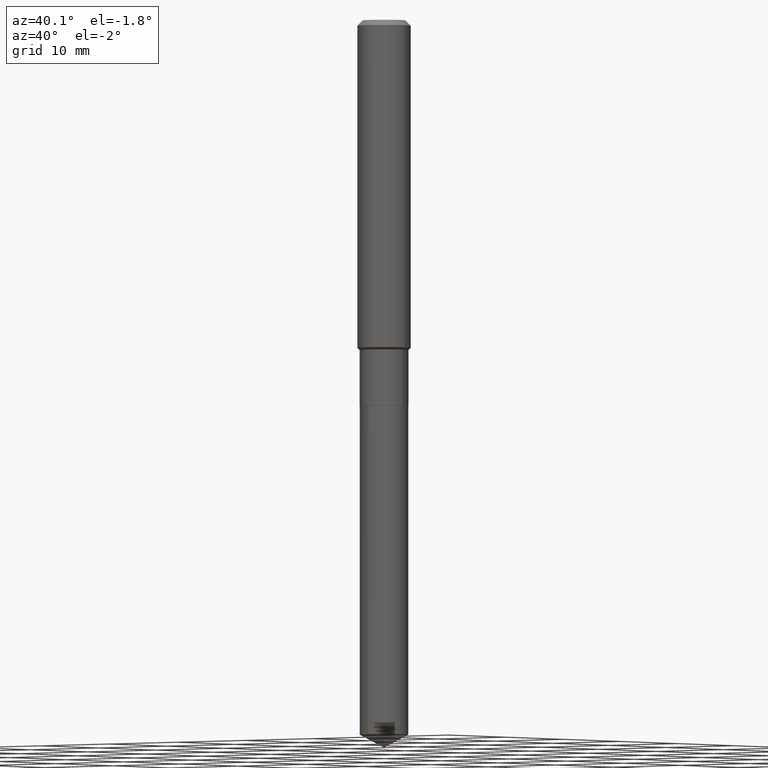
[diagram: clean part render]
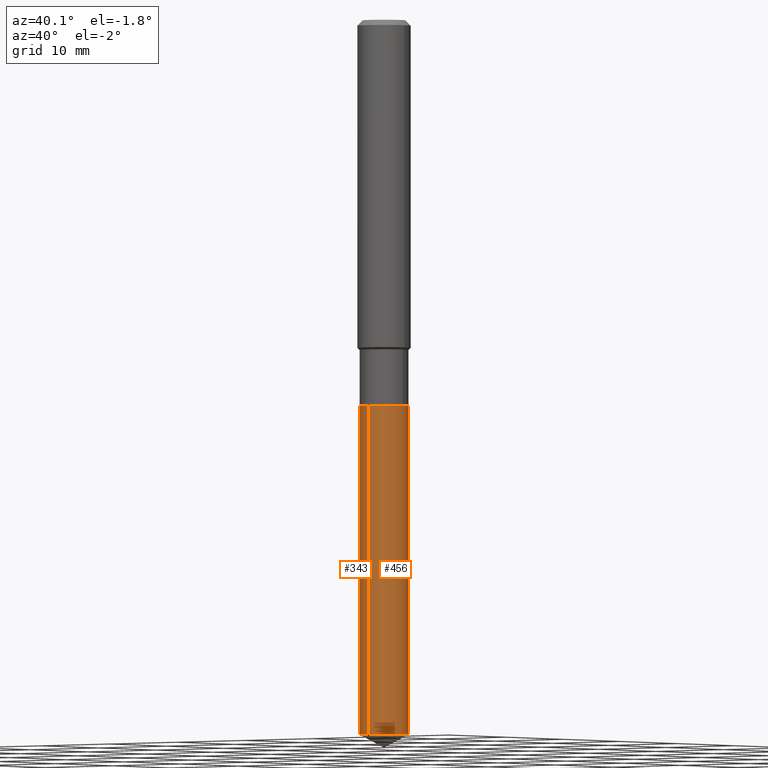
[diagram: same view with one multi-face feature highlighted, each face labeled with its STEP entity id]
A machine part, auxiliary view. The highlighted faces form ONE feature: a constant-radius fillet chain: 2 tangent blend faces with common blend radius 2.7495 mm. The faces share edges in the B-rep.
Their STEP definitions:
[1] entity #343 (Cylinder):
#5 = CARTESIAN_POINT ( 'NONE',  ( 7.691625114603860483E-16, 0.1082499999999940177, -1.712500000000000355 ) ) ;
#36 = DIRECTION ( 'NONE',  ( -2.445437012380576740E-29, 3.491526869380865605E-15, 1.000000000000000000 ) ) ;
#62 = EDGE_CURVE ( 'NONE', #84, #394, #329, .T. ) ;
#66 = CARTESIAN_POINT ( 'NONE',  ( 7.691625114603859497E-16, 0.1082499999999889523, -3.170742454022645429 ) ) ;
#70 = DIRECTION ( 'NONE',  ( -2.445437012380576740E-29, 3.491526869380865605E-15, 1.000000000000000000 ) ) ;
#84 = VERTEX_POINT ( 'NONE', #286 ) ;
#86 = EDGE_LOOP ( 'NONE', ( #402, #198, #169, #132 ) ) ;
#87 = EDGE_CURVE ( 'NONE', #138, #223, #153, .T. ) ;
#91 = CARTESIAN_POINT ( 'NONE',  ( 4.187865330592046870E-29, -5.979161792768887170E-15, -1.712500000000000133 ) ) ;
#105 = EDGE_CURVE ( 'NONE', #223, #394, #426, .T. ) ;
#119 = FACE_OUTER_BOUND ( 'NONE', #86, .T. ) ;
#132 = ORIENTED_EDGE ( 'NONE', *, *, #105, .F. ) ;
#138 = VERTEX_POINT ( 'NONE', #66 ) ;
#143 = CARTESIAN_POINT ( 'NONE',  ( -7.559057098594963527E-16, -0.1082500000000059803, -1.712499999999999911 ) ) ;
#146 = CARTESIAN_POINT ( 'NONE',  ( 7.753905400683704918E-29, -1.107065450306084433E-14, -3.170742454022644985 ) ) ;
#153 = LINE ( 'NONE', #331, #370 ) ;
#165 = EDGE_CURVE ( 'NONE', #138, #84, #353, .T. ) ;
#169 = ORIENTED_EDGE ( 'NONE', *, *, #62, .T. ) ;
#190 = DIRECTION ( 'NONE',  ( -2.445437012380576740E-29, 3.491526869380865999E-15, 1.000000000000000000 ) ) ;
#198 = ORIENTED_EDGE ( 'NONE', *, *, #165, .T. ) ;
#218 = AXIS2_PLACEMENT_3D ( 'NONE', #291, #455, #248 ) ;
#220 = AXIS2_PLACEMENT_3D ( 'NONE', #91, #226, #321 ) ;
#223 = VERTEX_POINT ( 'NONE', #5 ) ;
#226 = DIRECTION ( 'NONE',  ( -2.445437012380576740E-29, 3.491526869380865999E-15, 1.000000000000000000 ) ) ;
#234 = CYLINDRICAL_SURFACE ( 'NONE', #220, 0.1082499999999999990 ) ;
#248 = DIRECTION ( 'NONE',  ( -6.982962677686265922E-15, -1.000000000000000000, 2.523647107311097814E-15 ) ) ;
#286 = CARTESIAN_POINT ( 'NONE',  ( -7.559057098594608540E-16, -0.1082500000000110874, -3.170742454022644541 ) ) ;
#291 = CARTESIAN_POINT ( 'NONE',  ( 4.187865330592046870E-29, -5.979161792768887170E-15, -1.712500000000000133 ) ) ;
#300 = DIRECTION ( 'NONE',  ( -6.982962677686265922E-15, -1.000000000000000000, 5.047294214622195629E-15 ) ) ;
#321 = DIRECTION ( 'NONE',  ( -6.982962677686265922E-15, -1.000000000000000000, 2.523647107311097814E-15 ) ) ;
#329 = LINE ( 'NONE', #143, #339 ) ;
#331 = CARTESIAN_POINT ( 'NONE',  ( 7.691625114603501551E-16, 0.1082499999999940177, -1.712500000000000355 ) ) ;
#339 = VECTOR ( 'NONE', #36, 39.37007874015748143 ) ;
#343 = ADVANCED_FACE ( 'NONE', ( #119 ), #234, .T. ) ;
#353 = CIRCLE ( 'NONE', #457, 0.1082499999999999990 ) ;
#357 = CARTESIAN_POINT ( 'NONE',  ( -7.559057098594963527E-16, -0.1082500000000059803, -1.712499999999999911 ) ) ;
#370 = VECTOR ( 'NONE', #70, 39.37007874015748143 ) ;
#394 = VERTEX_POINT ( 'NONE', #357 ) ;
#402 = ORIENTED_EDGE ( 'NONE', *, *, #87, .F. ) ;
#426 = CIRCLE ( 'NONE', #218, 0.1082499999999999990 ) ;
#455 = DIRECTION ( 'NONE',  ( -2.445437012380576740E-29, 3.491526869380865999E-15, 1.000000000000000000 ) ) ;
#457 = AXIS2_PLACEMENT_3D ( 'NONE', #146, #190, #300 ) ;
[2] entity #456 (Cylinder):
#5 = CARTESIAN_POINT ( 'NONE',  ( 7.691625114603860483E-16, 0.1082499999999940177, -1.712500000000000355 ) ) ;
#36 = DIRECTION ( 'NONE',  ( -2.445437012380576740E-29, 3.491526869380865605E-15, 1.000000000000000000 ) ) ;
#59 = CYLINDRICAL_SURFACE ( 'NONE', #435, 0.1082499999999999990 ) ;
#62 = EDGE_CURVE ( 'NONE', #84, #394, #329, .T. ) ;
#63 = CARTESIAN_POINT ( 'NONE',  ( 7.753905400683704918E-29, -1.107065450306084433E-14, -3.170742454022644985 ) ) ;
#66 = CARTESIAN_POINT ( 'NONE',  ( 7.691625114603859497E-16, 0.1082499999999889523, -3.170742454022645429 ) ) ;
#70 = DIRECTION ( 'NONE',  ( -2.445437012380576740E-29, 3.491526869380865605E-15, 1.000000000000000000 ) ) ;
#84 = VERTEX_POINT ( 'NONE', #286 ) ;
#87 = EDGE_CURVE ( 'NONE', #138, #223, #153, .T. ) ;
#88 = DIRECTION ( 'NONE',  ( -2.445437012380576740E-29, 3.491526869380865999E-15, 1.000000000000000000 ) ) ;
#94 = DIRECTION ( 'NONE',  ( -6.982962677686265922E-15, -1.000000000000000000, 2.523647107311097814E-15 ) ) ;
#108 = CIRCLE ( 'NONE', #371, 0.1082499999999999990 ) ;
#121 = DIRECTION ( 'NONE',  ( -6.982962677686265922E-15, -1.000000000000000000, 2.523647107311097814E-15 ) ) ;
#130 = ORIENTED_EDGE ( 'NONE', *, *, #87, .T. ) ;
#138 = VERTEX_POINT ( 'NONE', #66 ) ;
#143 = CARTESIAN_POINT ( 'NONE',  ( -7.559057098594963527E-16, -0.1082500000000059803, -1.712499999999999911 ) ) ;
#153 = LINE ( 'NONE', #331, #370 ) ;
#181 = FACE_OUTER_BOUND ( 'NONE', #440, .T. ) ;
#205 = ORIENTED_EDGE ( 'NONE', *, *, #62, .F. ) ;
#223 = VERTEX_POINT ( 'NONE', #5 ) ;
#250 = EDGE_CURVE ( 'NONE', #394, #223, #269, .T. ) ;
#269 = CIRCLE ( 'NONE', #287, 0.1082499999999999990 ) ;
#286 = CARTESIAN_POINT ( 'NONE',  ( -7.559057098594608540E-16, -0.1082500000000110874, -3.170742454022644541 ) ) ;
#287 = AXIS2_PLACEMENT_3D ( 'NONE', #310, #88, #121 ) ;
#310 = CARTESIAN_POINT ( 'NONE',  ( 4.187865330592046870E-29, -5.979161792768887170E-15, -1.712500000000000133 ) ) ;
#325 = DIRECTION ( 'NONE',  ( -2.445437012380576740E-29, 3.491526869380865999E-15, 1.000000000000000000 ) ) ;
#329 = LINE ( 'NONE', #143, #339 ) ;
#331 = CARTESIAN_POINT ( 'NONE',  ( 7.691625114603501551E-16, 0.1082499999999940177, -1.712500000000000355 ) ) ;
#339 = VECTOR ( 'NONE', #36, 39.37007874015748143 ) ;
#352 = EDGE_CURVE ( 'NONE', #84, #138, #108, .T. ) ;
#357 = CARTESIAN_POINT ( 'NONE',  ( -7.559057098594963527E-16, -0.1082500000000059803, -1.712499999999999911 ) ) ;
#370 = VECTOR ( 'NONE', #70, 39.37007874015748143 ) ;
#371 = AXIS2_PLACEMENT_3D ( 'NONE', #63, #473, #406 ) ;
#381 = ORIENTED_EDGE ( 'NONE', *, *, #352, .T. ) ;
#394 = VERTEX_POINT ( 'NONE', #357 ) ;
#406 = DIRECTION ( 'NONE',  ( -6.982962677686265922E-15, -1.000000000000000000, 5.047294214622195629E-15 ) ) ;
#435 = AXIS2_PLACEMENT_3D ( 'NONE', #436, #325, #94 ) ;
#436 = CARTESIAN_POINT ( 'NONE',  ( 4.187865330592046870E-29, -5.979161792768887170E-15, -1.712500000000000133 ) ) ;
#440 = EDGE_LOOP ( 'NONE', ( #381, #130, #477, #205 ) ) ;
#456 = ADVANCED_FACE ( 'NONE', ( #181 ), #59, .T. ) ;
#473 = DIRECTION ( 'NONE',  ( -2.445437012380576740E-29, 3.491526869380865999E-15, 1.000000000000000000 ) ) ;
#477 = ORIENTED_EDGE ( 'NONE', *, *, #250, .F. ) ;